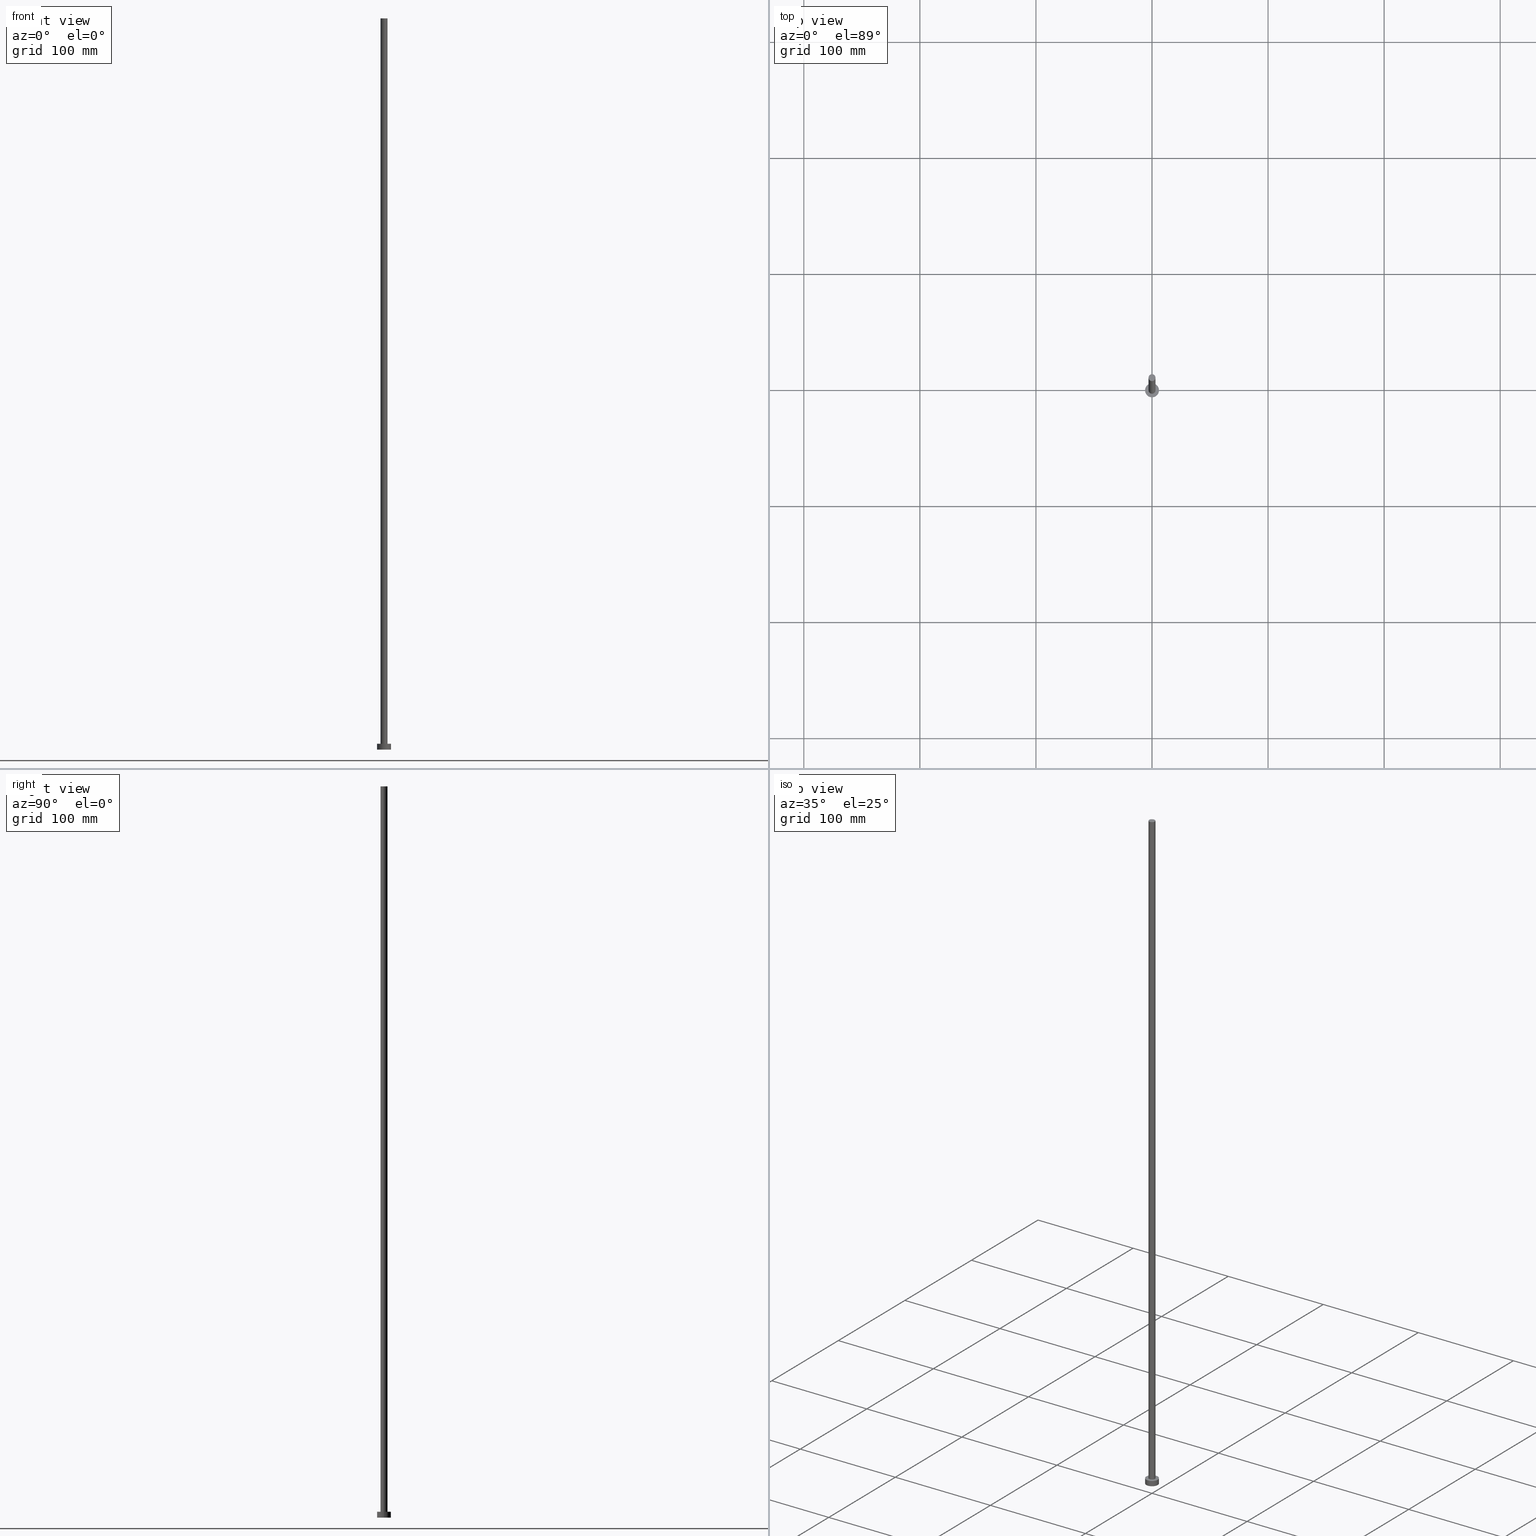
[diagram: canonical four-view strip — front | top / right | iso, engineering-drawing reading convention]
A machine part, canonical four-view strip (front | top / right | iso — engineering-drawing reading convention). The complete STEP part file that produces these views, byte-faithful:
ISO-10303-21;
HEADER;
FILE_DESCRIPTION (( 'STEP AP203' ),
    '1' );
FILE_NAME ('8763.STEP',
    '2023-02-12T12:18:07',
    ( '' ),
    ( '' ),
    'SwSTEP 2.0',
    'SolidWorks 2019',
    '' );
FILE_SCHEMA (( 'CONFIG_CONTROL_DESIGN' ));
ENDSEC;

DATA;
#1 = ORIENTED_EDGE ( 'NONE', *, *, #112, .F. ) ;
#2 = ORIENTED_EDGE ( 'NONE', *, *, #116, .F. ) ;
#3 = VERTEX_POINT ( 'NONE', #104 ) ;
#4 = EDGE_CURVE ( 'NONE', #5, #91, #171, .T. ) ;
#5 = VERTEX_POINT ( 'NONE', #138 ) ;
#6 = PRODUCT ( '8763', '8763', '', ( #110 ) ) ;
#7 = ORIENTED_EDGE ( 'NONE', *, *, #87, .T. ) ;
#8 = CARTESIAN_POINT ( 'NONE',  ( -3.000000000000000444, 0.000000000000000000, 630.0000000000000000 ) ) ;
#9 = PRODUCT_DEFINITION ( 'NEZN�M�', '', #143, #183 ) ;
#10 = FACE_OUTER_BOUND ( 'NONE', #159, .T. ) ;
#11 = FACE_OUTER_BOUND ( 'NONE', #64, .T. ) ;
#12 = DIRECTION ( 'NONE',  ( 0.000000000000000000, 0.000000000000000000, 1.000000000000000000 ) ) ;
#13 = DIRECTION ( 'NONE',  ( -0.000000000000000000, -0.000000000000000000, -1.000000000000000000 ) ) ;
#14 = PRODUCT_RELATED_PRODUCT_CATEGORY ( 'detail', '', ( #6 ) ) ;
#15 = COORDINATED_UNIVERSAL_TIME_OFFSET ( 1, 0, .AHEAD. ) ;
#16 = APPROVAL_DATE_TIME ( #36, #240 ) ;
#17 = CC_DESIGN_SECURITY_CLASSIFICATION ( #197, ( #143 ) ) ;
#18 = PERSON_AND_ORGANIZATION ( #163, #165 ) ;
#19 = PERSON_AND_ORGANIZATION_ROLE ( 'design_owner' ) ;
#20 = EDGE_CURVE ( 'NONE', #115, #5, #175, .T. ) ;
#21 = ORIENTED_EDGE ( 'NONE', *, *, #157, .F. ) ;
#22 = ORIENTED_EDGE ( 'NONE', *, *, #157, .T. ) ;
#23 = CC_DESIGN_PERSON_AND_ORGANIZATION_ASSIGNMENT ( #34, #79, ( #197 ) ) ;
#24 = CARTESIAN_POINT ( 'NONE',  ( 0.000000000000000000, 0.000000000000000000, 5.000000000000000000 ) ) ;
#25 = ORIENTED_EDGE ( 'NONE', *, *, #4, .T. ) ;
#26 = CARTESIAN_POINT ( 'NONE',  ( 3.000000000000000444, 3.673940397442060361E-16, 630.0000000000000000 ) ) ;
#27 = AXIS2_PLACEMENT_3D ( 'NONE', #216, #195, #101 ) ;
#28 = CARTESIAN_POINT ( 'NONE',  ( 0.000000000000000000, 0.000000000000000000, 630.0000000000000000 ) ) ;
#29 = ADVANCED_FACE ( 'NONE', ( #217 ), #238, .T. ) ;
#30 = CARTESIAN_POINT ( 'NONE',  ( 0.000000000000000000, 0.000000000000000000, 5.000000000000000000 ) ) ;
#31 = APPROVAL ( #150, 'NEUR�EN�' ) ;
#32 = DIRECTION ( 'NONE',  ( 1.000000000000000000, 0.000000000000000000, 0.000000000000000000 ) ) ;
#33 = APPROVAL_PERSON_ORGANIZATION ( #53, #231, #189 ) ;
#34 = PERSON_AND_ORGANIZATION ( #163, #165 ) ;
#35 = ADVANCED_FACE ( 'NONE', ( #66 ), #142, .T. ) ;
#36 = DATE_AND_TIME ( #56, #244 ) ;
#37 = APPLICATION_PROTOCOL_DEFINITION ( 'international standard', 'config_control_design', 1994, #181 ) ;
#38 = VECTOR ( 'NONE', #224, 1000.000000000000000 ) ;
#39 = PERSON_AND_ORGANIZATION ( #163, #165 ) ;
#40 = CARTESIAN_POINT ( 'NONE',  ( 0.000000000000000000, 0.000000000000000000, 0.000000000000000000 ) ) ;
#41 = ORIENTED_EDGE ( 'NONE', *, *, #246, .T. ) ;
#42 = EDGE_LOOP ( 'NONE', ( #196, #41, #156, #63 ) ) ;
#43 = EDGE_LOOP ( 'NONE', ( #119, #140 ) ) ;
#44 = CLOSED_SHELL ( 'NONE', ( #185, #230, #29, #164, #129, #35, #114 ) ) ;
#45 = ORIENTED_EDGE ( 'NONE', *, *, #78, .T. ) ;
#46 = DIRECTION ( 'NONE',  ( -0.000000000000000000, -0.000000000000000000, -1.000000000000000000 ) ) ;
#47 = DIRECTION ( 'NONE',  ( -1.000000000000000000, 0.000000000000000000, 0.000000000000000000 ) ) ;
#48 = FACE_BOUND ( 'NONE', #174, .T. ) ;
#49 = CC_DESIGN_DATE_AND_TIME_ASSIGNMENT ( #232, #83, ( #197 ) ) ;
#50 = LINE ( 'NONE', #26, #186 ) ;
#51 = DIRECTION ( 'NONE',  ( 1.000000000000000000, 0.000000000000000000, -0.000000000000000000 ) ) ;
#52 = DIRECTION ( 'NONE',  ( -1.000000000000000000, 0.000000000000000000, 0.000000000000000000 ) ) ;
#53 = PERSON_AND_ORGANIZATION ( #163, #165 ) ;
#54 = UNCERTAINTY_MEASURE_WITH_UNIT (LENGTH_MEASURE( 1.000000000000000082E-05 ), #146, 'distance_accuracy_value', 'NONE');
#55 = AXIS2_PLACEMENT_3D ( 'NONE', #70, #12, #149 ) ;
#56 = CALENDAR_DATE ( 2023, 12, 2 ) ;
#57 =( NAMED_UNIT ( * ) SI_UNIT ( $, .STERADIAN. ) SOLID_ANGLE_UNIT ( ) );
#58 = CARTESIAN_POINT ( 'NONE',  ( 0.000000000000000000, 0.000000000000000000, 0.000000000000000000 ) ) ;
#59 = AXIS2_PLACEMENT_3D ( 'NONE', #223, #200, #47 ) ;
#60 = DIRECTION ( 'NONE',  ( 1.000000000000000000, 0.000000000000000000, 0.000000000000000000 ) ) ;
#61 = AXIS2_PLACEMENT_3D ( 'NONE', #227, #187, #52 ) ;
#62 = DIRECTION ( 'NONE',  ( 1.000000000000000000, 0.000000000000000000, 0.000000000000000000 ) ) ;
#63 = ORIENTED_EDGE ( 'NONE', *, *, #20, .F. ) ;
#64 = EDGE_LOOP ( 'NONE', ( #118, #22 ) ) ;
#65 = APPLICATION_CONTEXT ( 'configuration controlled 3d designs of mechanical parts and assemblies' ) ;
#66 = FACE_OUTER_BOUND ( 'NONE', #220, .T. ) ;
#67 = AXIS2_PLACEMENT_3D ( 'NONE', #212, #46, #176 ) ;
#68 = FACE_OUTER_BOUND ( 'NONE', #42, .T. ) ;
#69 = CC_DESIGN_APPROVAL ( #231, ( #143 ) ) ;
#70 = CARTESIAN_POINT ( 'NONE',  ( 0.000000000000000000, 0.000000000000000000, 0.000000000000000000 ) ) ;
#71 = DIRECTION ( 'NONE',  ( 1.000000000000000000, 0.000000000000000000, -0.000000000000000000 ) ) ;
#72 = AXIS2_PLACEMENT_3D ( 'NONE', #203, #180, #107 ) ;
#73 = CARTESIAN_POINT ( 'NONE',  ( 3.000000000000000444, 3.673940397442060361E-16, 5.000000000000000000 ) ) ;
#74 = CC_DESIGN_DATE_AND_TIME_ASSIGNMENT ( #168, #191, ( #9 ) ) ;
#75 = LOCAL_TIME ( 13, 18, 7.000000000000000000, #77 ) ;
#76 = DIRECTION ( 'NONE',  ( 0.000000000000000000, 0.000000000000000000, 1.000000000000000000 ) ) ;
#77 = COORDINATED_UNIVERSAL_TIME_OFFSET ( 1, 0, .AHEAD. ) ;
#78 = EDGE_CURVE ( 'NONE', #3, #235, #85, .T. ) ;
#79 = PERSON_AND_ORGANIZATION_ROLE ( 'classification_officer' ) ;
#80 = AXIS2_PLACEMENT_3D ( 'NONE', #204, #94, #71 ) ;
#81 = APPROVAL_PERSON_ORGANIZATION ( #188, #31, #206 ) ;
#82 = CALENDAR_DATE ( 2023, 12, 2 ) ;
#83 = DATE_TIME_ROLE ( 'classification_date' ) ;
#84 = DIRECTION ( 'NONE',  ( 0.000000000000000000, 0.000000000000000000, 1.000000000000000000 ) ) ;
#85 = CIRCLE ( 'NONE', #178, 6.000000000000000888 ) ;
#86 = ORIENTED_EDGE ( 'NONE', *, *, #160, .F. ) ;
#87 = EDGE_CURVE ( 'NONE', #102, #115, #133, .T. ) ;
#88 = EDGE_LOOP ( 'NONE', ( #155, #2, #241, #239 ) ) ;
#89 = PRODUCT_DEFINITION_SHAPE ( 'NONE', 'NONE',  #9 ) ;
#90 = AXIS2_PLACEMENT_3D ( 'NONE', #247, #250, #96 ) ;
#91 = VERTEX_POINT ( 'NONE', #73 ) ;
#92 = ORIENTED_EDGE ( 'NONE', *, *, #20, .T. ) ;
#93 = DIRECTION ( 'NONE',  ( -0.000000000000000000, -0.000000000000000000, -1.000000000000000000 ) ) ;
#94 = DIRECTION ( 'NONE',  ( 0.000000000000000000, 0.000000000000000000, 1.000000000000000000 ) ) ;
#95 =( NAMED_UNIT ( * ) PLANE_ANGLE_UNIT ( ) SI_UNIT ( $, .RADIAN. ) );
#96 = DIRECTION ( 'NONE',  ( 1.000000000000000000, 0.000000000000000000, 0.000000000000000000 ) ) ;
#97 = PERSON_AND_ORGANIZATION ( #163, #165 ) ;
#98 = CALENDAR_DATE ( 2023, 12, 2 ) ;
#99 = COORDINATED_UNIVERSAL_TIME_OFFSET ( 1, 0, .AHEAD. ) ;
#100 = MANIFOLD_SOLID_BREP ( 'P�idat vysunut�m3', #44 ) ;
#101 = DIRECTION ( 'NONE',  ( 1.000000000000000000, 0.000000000000000000, 0.000000000000000000 ) ) ;
#102 = VERTEX_POINT ( 'NONE', #177 ) ;
#103 = DIRECTION ( 'NONE',  ( -0.000000000000000000, -0.000000000000000000, -1.000000000000000000 ) ) ;
#104 = CARTESIAN_POINT ( 'NONE',  ( 6.000000000000000888, 7.347880794884120722E-16, 0.000000000000000000 ) ) ;
#105 = LINE ( 'NONE', #166, #38 ) ;
#106 = DIRECTION ( 'NONE',  ( -0.000000000000000000, -0.000000000000000000, -1.000000000000000000 ) ) ;
#107 = DIRECTION ( 'NONE',  ( 1.000000000000000000, 0.000000000000000000, -0.000000000000000000 ) ) ;
#108 = CARTESIAN_POINT ( 'NONE',  ( 6.000000000000000888, 7.347880794884120722E-16, 5.000000000000000000 ) ) ;
#109 = FACE_OUTER_BOUND ( 'NONE', #43, .T. ) ;
#110 = MECHANICAL_CONTEXT ( 'NONE', #65, 'mechanical' ) ;
#111 = COORDINATED_UNIVERSAL_TIME_OFFSET ( 1, 0, .AHEAD. ) ;
#112 = EDGE_CURVE ( 'NONE', #198, #235, #105, .T. ) ;
#113 = APPROVAL_STATUS ( 'not_yet_approved' ) ;
#114 = ADVANCED_FACE ( 'NONE', ( #202 ), #127, .T. ) ;
#115 = VERTEX_POINT ( 'NONE', #8 ) ;
#116 = EDGE_CURVE ( 'NONE', #198, #141, #219, .T. ) ;
#117 = DIRECTION ( 'NONE',  ( 0.000000000000000000, 0.000000000000000000, 1.000000000000000000 ) ) ;
#118 = ORIENTED_EDGE ( 'NONE', *, *, #116, .T. ) ;
#119 = ORIENTED_EDGE ( 'NONE', *, *, #172, .F. ) ;
#120 = ORIENTED_EDGE ( 'NONE', *, *, #229, .T. ) ;
#121 = EDGE_LOOP ( 'NONE', ( #236, #7 ) ) ;
#122 = DIRECTION ( 'NONE',  ( 1.000000000000000000, 0.000000000000000000, 0.000000000000000000 ) ) ;
#123 = PLANE ( 'NONE',  #154 ) ;
#124 = AXIS2_PLACEMENT_3D ( 'NONE', #24, #103, #194 ) ;
#125 =( GEOMETRIC_REPRESENTATION_CONTEXT ( 3 ) GLOBAL_UNCERTAINTY_ASSIGNED_CONTEXT ( ( #54 ) ) GLOBAL_UNIT_ASSIGNED_CONTEXT ( ( #146, #95, #57 ) ) REPRESENTATION_CONTEXT ( 'NONE', 'WORKASPACE' ) );
#126 = CC_DESIGN_PERSON_AND_ORGANIZATION_ASSIGNMENT ( #39, #192, ( #143 ) ) ;
#127 = PLANE ( 'NONE',  #80 ) ;
#128 = LINE ( 'NONE', #182, #201 ) ;
#129 = ADVANCED_FACE ( 'NONE', ( #109 ), #162, .F. ) ;
#130 = AXIS2_PLACEMENT_3D ( 'NONE', #243, #245, #148 ) ;
#131 = APPROVAL_STATUS ( 'not_yet_approved' ) ;
#132 = PERSON_AND_ORGANIZATION ( #163, #165 ) ;
#133 = CIRCLE ( 'NONE', #147, 3.000000000000000444 ) ;
#134 = APPROVAL_ROLE ( '' ) ;
#135 = CALENDAR_DATE ( 2023, 12, 2 ) ;
#136 = ORIENTED_EDGE ( 'NONE', *, *, #234, .F. ) ;
#137 = CIRCLE ( 'NONE', #90, 3.000000000000000444 ) ;
#138 = CARTESIAN_POINT ( 'NONE',  ( -3.000000000000000444, 0.000000000000000000, 5.000000000000000000 ) ) ;
#139 = CC_DESIGN_PERSON_AND_ORGANIZATION_ASSIGNMENT ( #18, #211, ( #143 ) ) ;
#140 = ORIENTED_EDGE ( 'NONE', *, *, #78, .F. ) ;
#141 = VERTEX_POINT ( 'NONE', #108 ) ;
#142 = CYLINDRICAL_SURFACE ( 'NONE', #67, 3.000000000000000444 ) ;
#143 = PRODUCT_DEFINITION_FORMATION_WITH_SPECIFIED_SOURCE ( 'LIBOVOLN�', '', #6, .NOT_KNOWN. ) ;
#144 = CARTESIAN_POINT ( 'NONE',  ( -6.000000000000000888, 0.000000000000000000, 5.000000000000000000 ) ) ;
#145 = CYLINDRICAL_SURFACE ( 'NONE', #61, 3.000000000000000444 ) ;
#146 =( LENGTH_UNIT ( ) NAMED_UNIT ( * ) SI_UNIT ( .MILLI., .METRE. ) );
#147 = AXIS2_PLACEMENT_3D ( 'NONE', #214, #117, #62 ) ;
#148 = DIRECTION ( 'NONE',  ( 1.000000000000000000, 0.000000000000000000, 0.000000000000000000 ) ) ;
#149 = DIRECTION ( 'NONE',  ( 1.000000000000000000, 0.000000000000000000, 0.000000000000000000 ) ) ;
#150 = APPROVAL_STATUS ( 'not_yet_approved' ) ;
#151 = CALENDAR_DATE ( 2023, 12, 2 ) ;
#152 = SECURITY_CLASSIFICATION_LEVEL ( 'unclassified' ) ;
#153 = SHAPE_DEFINITION_REPRESENTATION ( #89, #222 ) ;
#154 = AXIS2_PLACEMENT_3D ( 'NONE', #226, #76, #51 ) ;
#155 = ORIENTED_EDGE ( 'NONE', *, *, #229, .F. ) ;
#156 = ORIENTED_EDGE ( 'NONE', *, *, #160, .T. ) ;
#157 = EDGE_CURVE ( 'NONE', #141, #198, #207, .T. ) ;
#158 = ORIENTED_EDGE ( 'NONE', *, *, #4, .F. ) ;
#159 = EDGE_LOOP ( 'NONE', ( #21, #120, #45, #1 ) ) ;
#160 = EDGE_CURVE ( 'NONE', #91, #5, #137, .T. ) ;
#161 = CYLINDRICAL_SURFACE ( 'NONE', #59, 6.000000000000000888 ) ;
#162 = PLANE ( 'NONE',  #72 ) ;
#163 = PERSON ( 'NEUR�EN�', 'NEUR�EN�', 'NEUR�EN�', ('NEUR�EN�'), ('NEUR�EN�'), ('NEUR�EN�') ) ;
#164 = ADVANCED_FACE ( 'NONE', ( #48, #11 ), #123, .T. ) ;
#165 = ORGANIZATION ( 'NEUR�EN�', 'NEUR�EN�', '' ) ;
#166 = CARTESIAN_POINT ( 'NONE',  ( -6.000000000000000888, 0.000000000000000000, 5.000000000000000000 ) ) ;
#167 = DIRECTION ( 'NONE',  ( 1.000000000000000000, 0.000000000000000000, 0.000000000000000000 ) ) ;
#168 = DATE_AND_TIME ( #135, #225 ) ;
#169 = DATE_AND_TIME ( #98, #255 ) ;
#170 = CC_DESIGN_PERSON_AND_ORGANIZATION_ASSIGNMENT ( #228, #254, ( #9 ) ) ;
#171 = CIRCLE ( 'NONE', #27, 3.000000000000000444 ) ;
#172 = EDGE_CURVE ( 'NONE', #235, #3, #210, .T. ) ;
#173 = LOCAL_TIME ( 13, 18, 7.000000000000000000, #252 ) ;
#174 = EDGE_LOOP ( 'NONE', ( #158, #86 ) ) ;
#175 = LINE ( 'NONE', #242, #237 ) ;
#176 = DIRECTION ( 'NONE',  ( -1.000000000000000000, 0.000000000000000000, 0.000000000000000000 ) ) ;
#177 = CARTESIAN_POINT ( 'NONE',  ( 3.000000000000000444, 3.673940397442060361E-16, 630.0000000000000000 ) ) ;
#178 = AXIS2_PLACEMENT_3D ( 'NONE', #40, #193, #60 ) ;
#179 = APPROVAL_PERSON_ORGANIZATION ( #97, #240, #134 ) ;
#180 = DIRECTION ( 'NONE',  ( 0.000000000000000000, 0.000000000000000000, 1.000000000000000000 ) ) ;
#181 = APPLICATION_CONTEXT ( 'configuration controlled 3d designs of mechanical parts and assemblies' ) ;
#182 = CARTESIAN_POINT ( 'NONE',  ( 6.000000000000000888, 7.347880794884120722E-16, 5.000000000000000000 ) ) ;
#183 = DESIGN_CONTEXT ( 'detailed design', #181, 'design' ) ;
#184 = DIRECTION ( 'NONE',  ( 0.000000000000000000, 0.000000000000000000, 1.000000000000000000 ) ) ;
#185 = ADVANCED_FACE ( 'NONE', ( #68 ), #145, .T. ) ;
#186 = VECTOR ( 'NONE', #106, 1000.000000000000000 ) ;
#187 = DIRECTION ( 'NONE',  ( -0.000000000000000000, -0.000000000000000000, -1.000000000000000000 ) ) ;
#188 = PERSON_AND_ORGANIZATION ( #163, #165 ) ;
#189 = APPROVAL_ROLE ( '' ) ;
#190 = AXIS2_PLACEMENT_3D ( 'NONE', #58, #84, #167 ) ;
#191 = DATE_TIME_ROLE ( 'creation_date' ) ;
#192 = PERSON_AND_ORGANIZATION_ROLE ( 'design_supplier' ) ;
#193 = DIRECTION ( 'NONE',  ( 0.000000000000000000, 0.000000000000000000, 1.000000000000000000 ) ) ;
#194 = DIRECTION ( 'NONE',  ( -1.000000000000000000, 0.000000000000000000, 0.000000000000000000 ) ) ;
#195 = DIRECTION ( 'NONE',  ( 0.000000000000000000, 0.000000000000000000, 1.000000000000000000 ) ) ;
#196 = ORIENTED_EDGE ( 'NONE', *, *, #87, .F. ) ;
#197 = SECURITY_CLASSIFICATION ( '', '', #152 ) ;
#198 = VERTEX_POINT ( 'NONE', #144 ) ;
#199 = CARTESIAN_POINT ( 'NONE',  ( -6.000000000000000888, 0.000000000000000000, 0.000000000000000000 ) ) ;
#200 = DIRECTION ( 'NONE',  ( -0.000000000000000000, -0.000000000000000000, -1.000000000000000000 ) ) ;
#201 = VECTOR ( 'NONE', #13, 1000.000000000000000 ) ;
#202 = FACE_OUTER_BOUND ( 'NONE', #121, .T. ) ;
#203 = CARTESIAN_POINT ( 'NONE',  ( 0.000000000000000000, 0.000000000000000000, 0.000000000000000000 ) ) ;
#204 = CARTESIAN_POINT ( 'NONE',  ( 0.000000000000000000, 0.000000000000000000, 630.0000000000000000 ) ) ;
#205 = APPROVAL_DATE_TIME ( #233, #231 ) ;
#206 = APPROVAL_ROLE ( '' ) ;
#207 = CIRCLE ( 'NONE', #213, 6.000000000000000888 ) ;
#208 = CC_DESIGN_PERSON_AND_ORGANIZATION_ASSIGNMENT ( #132, #19, ( #6 ) ) ;
#209 = APPROVAL_DATE_TIME ( #169, #31 ) ;
#210 = CIRCLE ( 'NONE', #55, 6.000000000000000888 ) ;
#211 = PERSON_AND_ORGANIZATION_ROLE ( 'creator' ) ;
#212 = CARTESIAN_POINT ( 'NONE',  ( 0.000000000000000000, 0.000000000000000000, 630.0000000000000000 ) ) ;
#213 = AXIS2_PLACEMENT_3D ( 'NONE', #30, #184, #32 ) ;
#214 = CARTESIAN_POINT ( 'NONE',  ( 0.000000000000000000, 0.000000000000000000, 630.0000000000000000 ) ) ;
#215 = CC_DESIGN_APPROVAL ( #240, ( #197 ) ) ;
#216 = CARTESIAN_POINT ( 'NONE',  ( 0.000000000000000000, 0.000000000000000000, 5.000000000000000000 ) ) ;
#217 = FACE_OUTER_BOUND ( 'NONE', #88, .T. ) ;
#218 = ORIENTED_EDGE ( 'NONE', *, *, #246, .F. ) ;
#219 = CIRCLE ( 'NONE', #130, 6.000000000000000888 ) ;
#220 = EDGE_LOOP ( 'NONE', ( #218, #136, #92, #25 ) ) ;
#221 = CC_DESIGN_APPROVAL ( #31, ( #9 ) ) ;
#222 = ADVANCED_BREP_SHAPE_REPRESENTATION ( '8763', ( #100, #190 ), #125 ) ;
#223 = CARTESIAN_POINT ( 'NONE',  ( 0.000000000000000000, 0.000000000000000000, 5.000000000000000000 ) ) ;
#224 = DIRECTION ( 'NONE',  ( -0.000000000000000000, -0.000000000000000000, -1.000000000000000000 ) ) ;
#225 = LOCAL_TIME ( 13, 18, 7.000000000000000000, #111 ) ;
#226 = CARTESIAN_POINT ( 'NONE',  ( 0.000000000000000000, 0.000000000000000000, 5.000000000000000000 ) ) ;
#227 = CARTESIAN_POINT ( 'NONE',  ( 0.000000000000000000, 0.000000000000000000, 630.0000000000000000 ) ) ;
#228 = PERSON_AND_ORGANIZATION ( #163, #165 ) ;
#229 = EDGE_CURVE ( 'NONE', #141, #3, #128, .T. ) ;
#230 = ADVANCED_FACE ( 'NONE', ( #10 ), #161, .T. ) ;
#231 = APPROVAL ( #113, 'NEUR�EN�' ) ;
#232 = DATE_AND_TIME ( #151, #75 ) ;
#233 = DATE_AND_TIME ( #82, #173 ) ;
#234 = EDGE_CURVE ( 'NONE', #115, #102, #249, .T. ) ;
#235 = VERTEX_POINT ( 'NONE', #199 ) ;
#236 = ORIENTED_EDGE ( 'NONE', *, *, #234, .T. ) ;
#237 = VECTOR ( 'NONE', #93, 1000.000000000000000 ) ;
#238 = CYLINDRICAL_SURFACE ( 'NONE', #124, 6.000000000000000888 ) ;
#239 = ORIENTED_EDGE ( 'NONE', *, *, #172, .T. ) ;
#240 = APPROVAL ( #131, 'NEUR�EN�' ) ;
#241 = ORIENTED_EDGE ( 'NONE', *, *, #112, .T. ) ;
#242 = CARTESIAN_POINT ( 'NONE',  ( -3.000000000000000444, 0.000000000000000000, 630.0000000000000000 ) ) ;
#243 = CARTESIAN_POINT ( 'NONE',  ( 0.000000000000000000, 0.000000000000000000, 5.000000000000000000 ) ) ;
#244 = LOCAL_TIME ( 13, 18, 7.000000000000000000, #99 ) ;
#245 = DIRECTION ( 'NONE',  ( 0.000000000000000000, 0.000000000000000000, 1.000000000000000000 ) ) ;
#246 = EDGE_CURVE ( 'NONE', #102, #91, #50, .T. ) ;
#247 = CARTESIAN_POINT ( 'NONE',  ( 0.000000000000000000, 0.000000000000000000, 5.000000000000000000 ) ) ;
#248 = DIRECTION ( 'NONE',  ( 0.000000000000000000, 0.000000000000000000, 1.000000000000000000 ) ) ;
#249 = CIRCLE ( 'NONE', #253, 3.000000000000000444 ) ;
#250 = DIRECTION ( 'NONE',  ( 0.000000000000000000, 0.000000000000000000, 1.000000000000000000 ) ) ;
#251 = APPLICATION_PROTOCOL_DEFINITION ( 'international standard', 'config_control_design', 1994, #65 ) ;
#252 = COORDINATED_UNIVERSAL_TIME_OFFSET ( 1, 0, .AHEAD. ) ;
#253 = AXIS2_PLACEMENT_3D ( 'NONE', #28, #248, #122 ) ;
#254 = PERSON_AND_ORGANIZATION_ROLE ( 'creator' ) ;
#255 = LOCAL_TIME ( 13, 18, 7.000000000000000000, #15 ) ;
ENDSEC;
END-ISO-10303-21;
